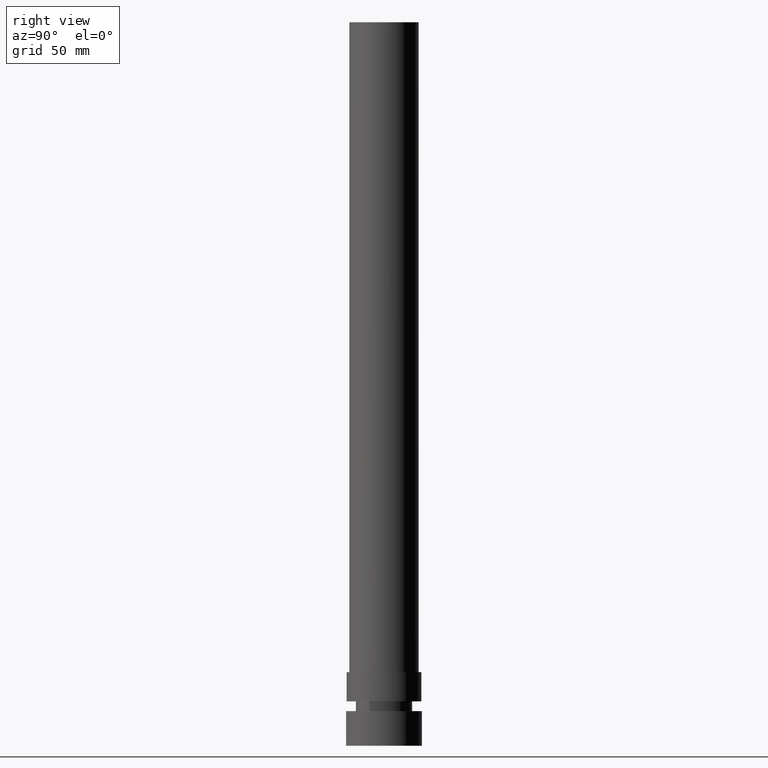
[diagram: clean part render]
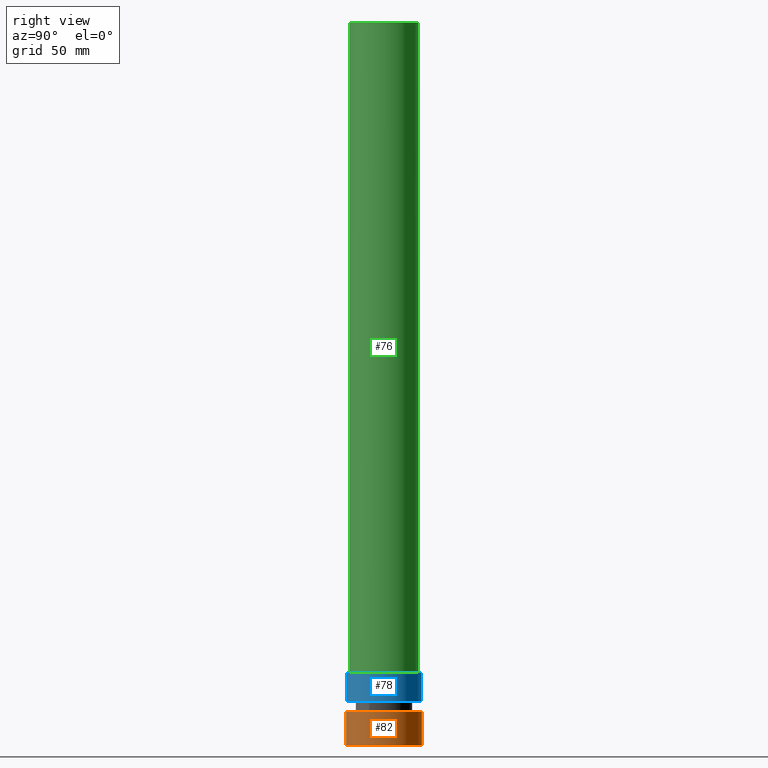
[diagram: same view with three faces highlighted in distinct colors, each labeled with its STEP entity id]
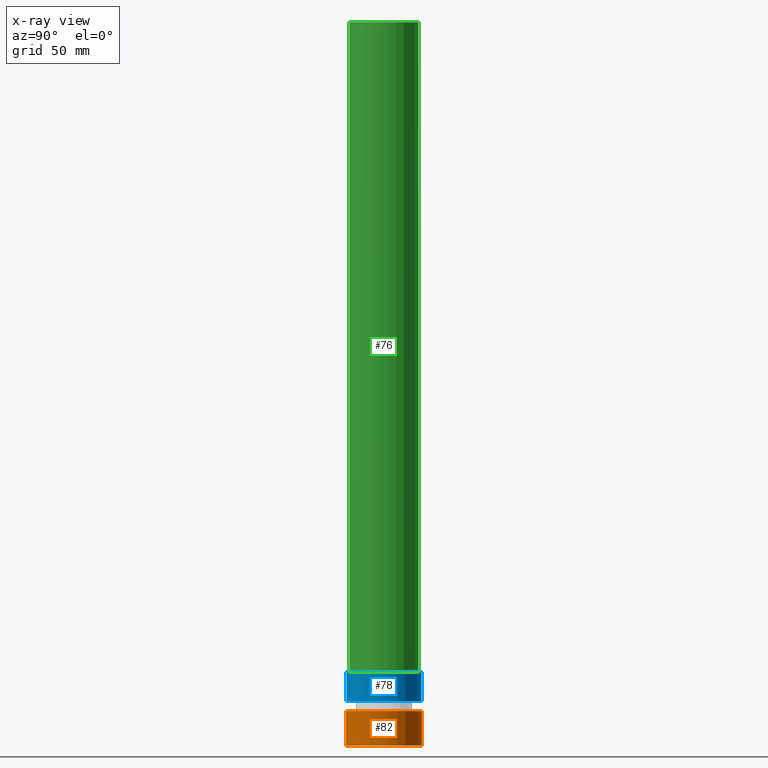
[diagram: x-ray of the same camera — body ghosted, the three highlighted faces saturated]
A machine part, right view with three faces highlighted in distinct colors.
The next image is the same camera in x-ray (body ghosted, the three faces saturated) — at least one of them is partly hidden behind the body in this view.
Their STEP definitions:

[orange] entity #82 — the highlighted cylindrical surface (bore or boss wall) has radius 17.5 mm, axis along (-0, -0, 1).
#82=ADVANCED_FACE('',(#105,#106),#107,.T.);
#105=FACE_BOUND('',#130,.T.);
#106=FACE_BOUND('',#131,.T.);
#107=CYLINDRICAL_SURFACE('',#132,17.5);
#130=EDGE_LOOP('',(#169));
#131=EDGE_LOOP('',(#170));
#132=AXIS2_PLACEMENT_3D('',#171,#172,#173);
#169=ORIENTED_EDGE('',*,*,#185,.F.);
#170=ORIENTED_EDGE('',*,*,#184,.T.);
#171=CARTESIAN_POINT('',(-4.89858719658941E-016,-9.79717439317881E-016,8.0));
#172=DIRECTION('',(-6.12323399573677E-017,-1.22464679914735E-016,1.0));
#173=DIRECTION('',(-1.23259516440783E-032,1.0,1.22464679914735E-016));
#184=EDGE_CURVE('',#198,#198,#199,.T.);
#185=EDGE_CURVE('',#200,#200,#201,.T.);
#198=VERTEX_POINT('',#214);
#199=CIRCLE('',#215,17.5);
#200=VERTEX_POINT('',#216);
#201=CIRCLE('',#217,17.5);
#214=CARTESIAN_POINT('',(-9.79717439317881E-016,17.5,16.0));
#215=AXIS2_PLACEMENT_3D('',#236,#237,#238);
#216=CARTESIAN_POINT('',(0.0,17.5,0.0));
#217=AXIS2_PLACEMENT_3D('',#239,#240,#241);
#236=CARTESIAN_POINT('',(-9.79717439317881E-016,-1.95943487863577E-015,16.0));
#237=DIRECTION('',(6.12323399573677E-017,1.22464679914735E-016,-1.0));
#238=DIRECTION('',(-1.23259516440783E-032,1.0,1.22464679914735E-016));
#239=CARTESIAN_POINT('',(0.0,0.0,0.0));
#240=DIRECTION('',(6.12323399573677E-017,1.22464679914735E-016,-1.0));
#241=DIRECTION('',(-1.23259516440783E-032,1.0,1.22464679914735E-016));

[blue] entity #78 — the highlighted cylindrical surface (bore or boss wall) has radius 17.25 mm, axis along (-0, -0, 1).
#78=ADVANCED_FACE('',(#93,#94),#95,.T.);
#93=FACE_BOUND('',#118,.T.);
#94=FACE_BOUND('',#119,.T.);
#95=CYLINDRICAL_SURFACE('',#120,17.25);
#118=EDGE_LOOP('',(#149));
#119=EDGE_LOOP('',(#150));
#120=AXIS2_PLACEMENT_3D('',#151,#152,#153);
#149=ORIENTED_EDGE('',*,*,#181,.F.);
#150=ORIENTED_EDGE('',*,*,#180,.T.);
#151=CARTESIAN_POINT('',(-1.66858126383827E-015,-3.33716252767654E-015,27.25));
#152=DIRECTION('',(-6.12323399573677E-017,-1.22464679914735E-016,1.0));
#153=DIRECTION('',(-1.23259516440783E-032,1.0,1.22464679914735E-016));
#180=EDGE_CURVE('',#190,#190,#191,.T.);
#181=EDGE_CURVE('',#192,#192,#193,.T.);
#190=VERTEX_POINT('',#206);
#191=CIRCLE('',#207,17.25);
#192=VERTEX_POINT('',#208);
#193=CIRCLE('',#209,17.25);
#206=CARTESIAN_POINT('',(-2.0818995585505E-015,17.25,34.0));
#207=AXIS2_PLACEMENT_3D('',#224,#225,#226);
#208=CARTESIAN_POINT('',(-1.25526296912604E-015,17.25,20.5));
#209=AXIS2_PLACEMENT_3D('',#227,#228,#229);
#224=CARTESIAN_POINT('',(-2.0818995585505E-015,-4.163799117101E-015,34.0));
#225=DIRECTION('',(6.12323399573677E-017,1.22464679914735E-016,-1.0));
#226=DIRECTION('',(-1.23259516440783E-032,1.0,1.22464679914735E-016));
#227=CARTESIAN_POINT('',(-1.25526296912604E-015,-2.51052593825208E-015,20.5));
#228=DIRECTION('',(6.12323399573677E-017,1.22464679914735E-016,-1.0));
#229=DIRECTION('',(-1.23259516440783E-032,1.0,1.22464679914735E-016));

[green] entity #76 — the highlighted cylindrical surface (bore or boss wall) has radius 16 mm, axis along (-0, -0, 1).
#76=ADVANCED_FACE('',(#87,#88),#89,.T.);
#87=FACE_BOUND('',#112,.T.);
#88=FACE_BOUND('',#113,.T.);
#89=CYLINDRICAL_SURFACE('',#114,16.0);
#112=EDGE_LOOP('',(#139));
#113=EDGE_LOOP('',(#140));
#114=AXIS2_PLACEMENT_3D('',#141,#142,#143);
#139=ORIENTED_EDGE('',*,*,#179,.F.);
#140=ORIENTED_EDGE('',*,*,#178,.T.);
#141=CARTESIAN_POINT('',(-1.12667505521556E-014,-2.25335011043113E-014,184.0));
#142=DIRECTION('',(-6.12323399573677E-017,-1.22464679914735E-016,1.0));
#143=DIRECTION('',(-1.23259516440783E-032,1.0,1.22464679914735E-016));
#178=EDGE_CURVE('',#186,#186,#187,.T.);
#179=EDGE_CURVE('',#188,#188,#189,.T.);
#186=VERTEX_POINT('',#202);
#187=CIRCLE('',#203,16.0);
#188=VERTEX_POINT('',#204);
#189=CIRCLE('',#205,16.0);
#202=CARTESIAN_POINT('',(-2.04516015457608E-014,16.0,334.0));
#203=AXIS2_PLACEMENT_3D('',#218,#219,#220);
#204=CARTESIAN_POINT('',(-2.0818995585505E-015,16.0,34.0));
#205=AXIS2_PLACEMENT_3D('',#221,#222,#223);
#218=CARTESIAN_POINT('',(-2.04516015457608E-014,-4.09032030915216E-014,334.0));
#219=DIRECTION('',(6.12323399573677E-017,1.22464679914735E-016,-1.0));
#220=DIRECTION('',(-1.23259516440783E-032,1.0,1.22464679914735E-016));
#221=CARTESIAN_POINT('',(-2.0818995585505E-015,-4.163799117101E-015,34.0));
#222=DIRECTION('',(6.12323399573677E-017,1.22464679914735E-016,-1.0));
#223=DIRECTION('',(-1.23259516440783E-032,1.0,1.22464679914735E-016));